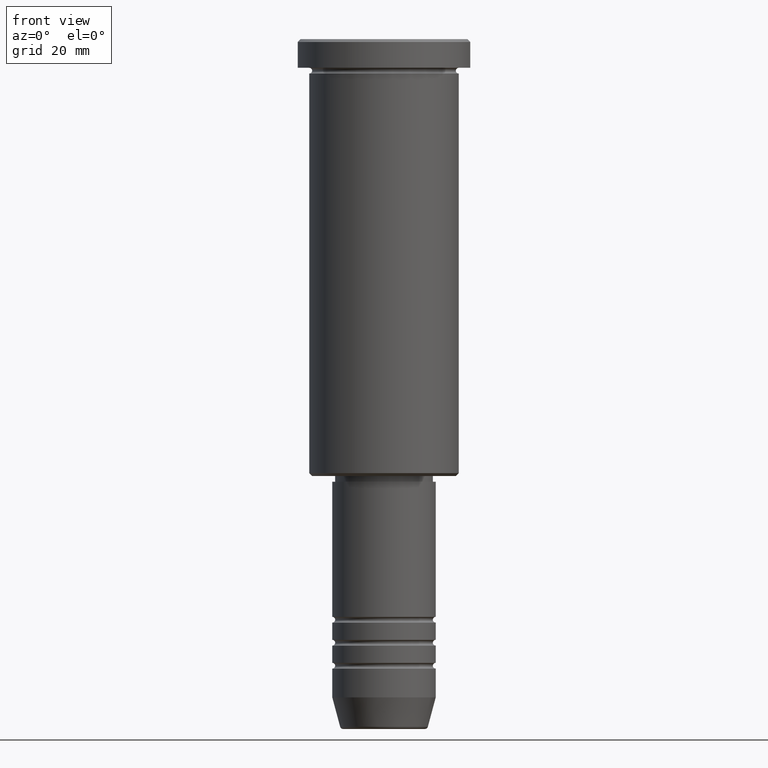
[diagram: clean part render]
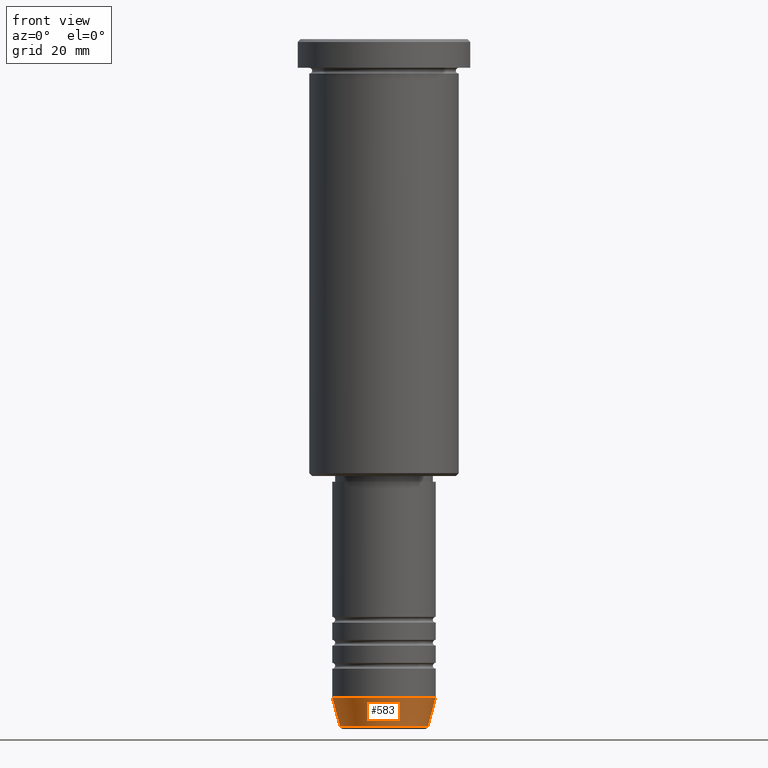
[diagram: same view with one face highlighted and labeled with its STEP entity id]
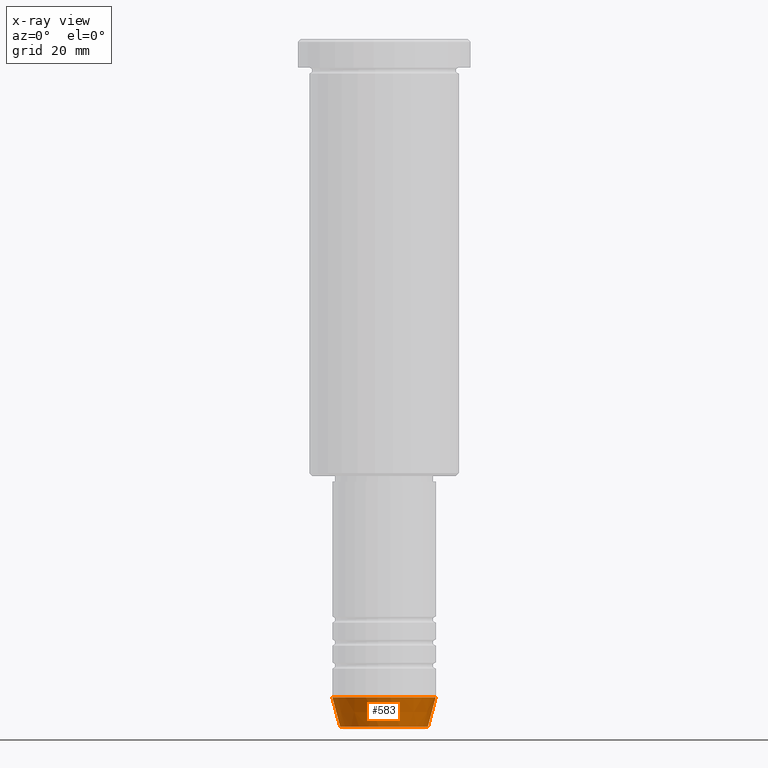
[diagram: x-ray of the same camera — body ghosted, the highlighted face saturated]
A machine part, front view. The second image highlights one B-rep face of the part: STEP entity #583.
The next image is the same camera in x-ray: the body ghosted, the highlighted face saturated — about 0% of this face is hidden behind the body in this view.
In plain terms, the highlighted conical surface has half-angle 15 deg.
Its self-contained STEP definition (entity closure, byte-faithful):
#11 = DIRECTION ( 'NONE',  ( -0.000000000000000000, -0.000000000000000000, 1.000000000000000000 ) ) ;
#51 = AXIS2_PLACEMENT_3D ( 'NONE', #970, #784, #798 ) ;
#76 = CARTESIAN_POINT ( 'NONE',  ( 0.000000000000000000, 0.000000000000000000, -114.4999999999999858 ) ) ;
#78 = VERTEX_POINT ( 'NONE', #356 ) ;
#112 = CARTESIAN_POINT ( 'NONE',  ( -9.000000000000001776, 1.102182119232617911E-15, -114.4999999999999858 ) ) ;
#157 = LINE ( 'NONE', #162, #382 ) ;
#162 = CARTESIAN_POINT ( 'NONE',  ( 9.000000000000001776, 0.000000000000000000, -114.4999999999999858 ) ) ;
#257 = EDGE_CURVE ( 'NONE', #974, #709, #915, .T. ) ;
#271 = DIRECTION ( 'NONE',  ( 1.000000000000000000, 0.000000000000000000, 0.000000000000000000 ) ) ;
#356 = CARTESIAN_POINT ( 'NONE',  ( 7.625578860783879698, 0.000000000000000000, -119.6294095225512422 ) ) ;
#381 = VECTOR ( 'NONE', #480, 1000.000000000000000 ) ;
#382 = VECTOR ( 'NONE', #525, 1000.000000000000000 ) ;
#387 = ORIENTED_EDGE ( 'NONE', *, *, #257, .F. ) ;
#389 = DIRECTION ( 'NONE',  ( 1.000000000000000000, 0.000000000000000000, 0.000000000000000000 ) ) ;
#450 = CARTESIAN_POINT ( 'NONE',  ( 0.000000000000000000, 0.000000000000000000, -114.4999999999999858 ) ) ;
#480 = DIRECTION ( 'NONE',  ( -0.2588190451025214056, 3.169619151431772953E-17, 0.9659258262890680902 ) ) ;
#491 = EDGE_CURVE ( 'NONE', #974, #78, #516, .T. ) ;
#512 = EDGE_CURVE ( 'NONE', #78, #828, #157, .T. ) ;
#516 = CIRCLE ( 'NONE', #51, 7.625578860783879698 ) ;
#525 = DIRECTION ( 'NONE',  ( 0.2588190451025214056, 0.000000000000000000, 0.9659258262890680902 ) ) ;
#560 = CARTESIAN_POINT ( 'NONE',  ( -7.625578860783880586, 1.018023096791544096E-15, -119.6294095225512422 ) ) ;
#583 = ADVANCED_FACE ( 'NONE', ( #1083 ), #603, .T. ) ;
#603 = CONICAL_SURFACE ( 'NONE', #1158, 9.000000000000001776, 0.2617993877991501295 ) ;
#705 = ORIENTED_EDGE ( 'NONE', *, *, #491, .T. ) ;
#709 = VERTEX_POINT ( 'NONE', #947 ) ;
#716 = DIRECTION ( 'NONE',  ( -0.000000000000000000, -0.000000000000000000, 1.000000000000000000 ) ) ;
#784 = DIRECTION ( 'NONE',  ( -0.000000000000000000, -0.000000000000000000, 1.000000000000000000 ) ) ;
#798 = DIRECTION ( 'NONE',  ( 1.000000000000000000, 0.000000000000000000, 0.000000000000000000 ) ) ;
#828 = VERTEX_POINT ( 'NONE', #885 ) ;
#846 = ORIENTED_EDGE ( 'NONE', *, *, #512, .T. ) ;
#851 = EDGE_LOOP ( 'NONE', ( #387, #705, #846, #1074 ) ) ;
#885 = CARTESIAN_POINT ( 'NONE',  ( 9.000000000000001776, 0.000000000000000000, -114.4999999999999858 ) ) ;
#905 = EDGE_CURVE ( 'NONE', #709, #828, #918, .T. ) ;
#915 = LINE ( 'NONE', #112, #381 ) ;
#918 = CIRCLE ( 'NONE', #1078, 9.000000000000001776 ) ;
#947 = CARTESIAN_POINT ( 'NONE',  ( -9.000000000000001776, 1.102182119232617911E-15, -114.4999999999999858 ) ) ;
#970 = CARTESIAN_POINT ( 'NONE',  ( 0.000000000000000000, 0.000000000000000000, -119.6294095225512422 ) ) ;
#974 = VERTEX_POINT ( 'NONE', #560 ) ;
#1074 = ORIENTED_EDGE ( 'NONE', *, *, #905, .F. ) ;
#1078 = AXIS2_PLACEMENT_3D ( 'NONE', #76, #716, #271 ) ;
#1083 = FACE_OUTER_BOUND ( 'NONE', #851, .T. ) ;
#1158 = AXIS2_PLACEMENT_3D ( 'NONE', #450, #11, #389 ) ;